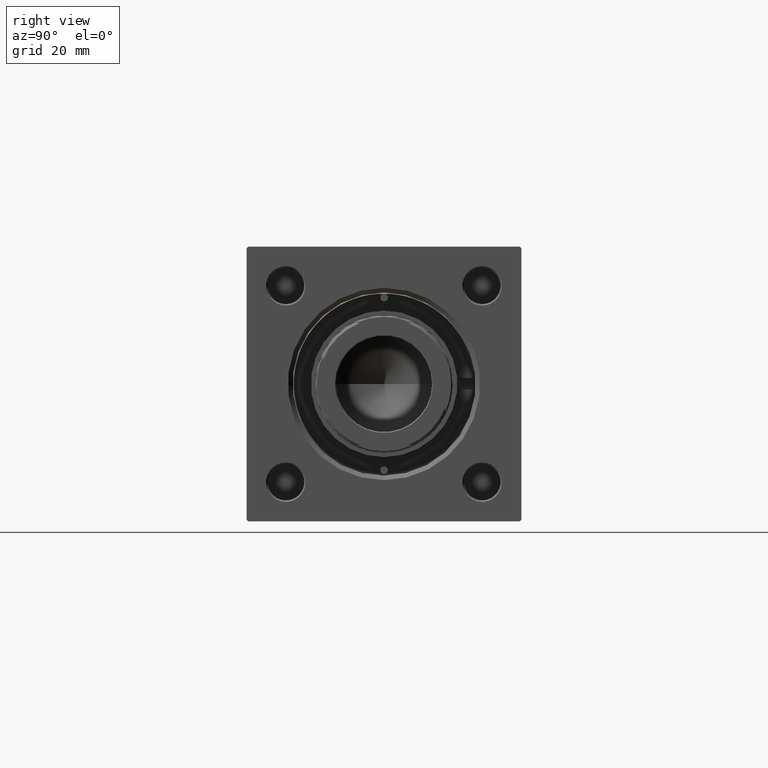
[diagram: clean part render]
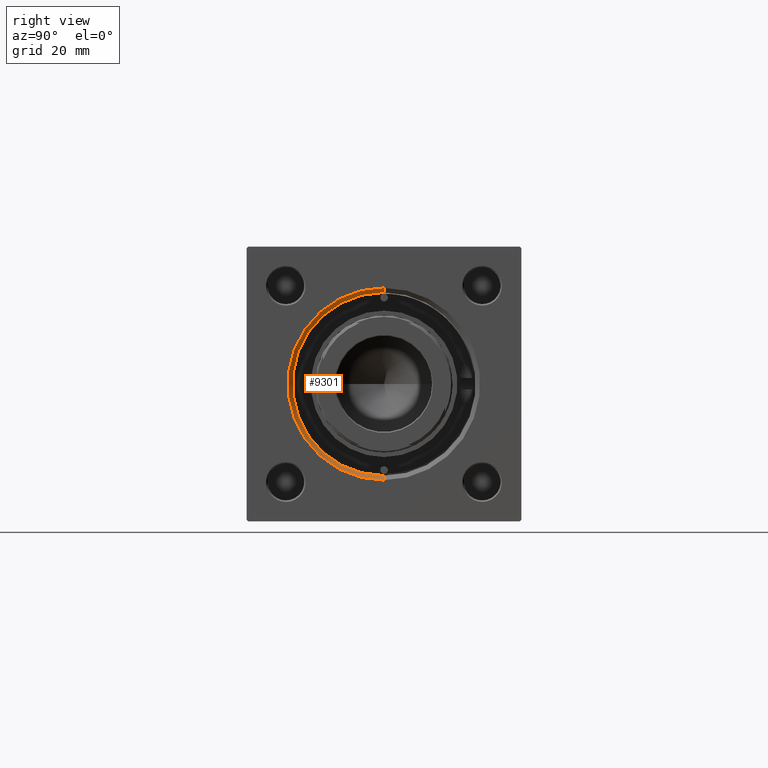
[diagram: same view with one face highlighted and labeled with its STEP entity id]
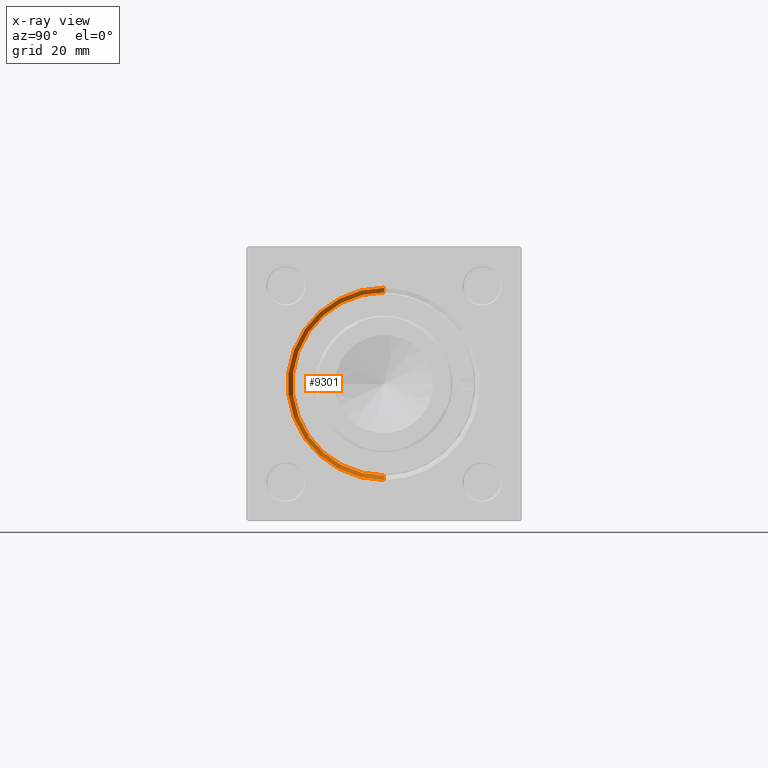
[diagram: x-ray of the same camera — body ghosted, the highlighted face saturated]
A machine part, right view. The second image highlights one B-rep face of the part: STEP entity #9301.
The next image is the same camera in x-ray: the body ghosted, the highlighted face saturated — about 0% of this face is hidden behind the body in this view.
In plain terms, the highlighted conical surface has half-angle 45 deg.
Its self-contained STEP definition (entity closure, byte-faithful):
#681 = DIRECTION ( 'NONE',  ( 0.7071067811865474617, 0.000000000000000000, -0.7071067811865474617 ) ) ;
#1114 = CARTESIAN_POINT ( 'NONE',  ( 153.5000000000000000, 0.000000000000000000, 0.000000000000000000 ) ) ;
#1131 = VERTEX_POINT ( 'NONE', #8577 ) ;
#1850 = DIRECTION ( 'NONE',  ( 0.000000000000000000, 0.000000000000000000, -1.000000000000000000 ) ) ;
#2151 = DIRECTION ( 'NONE',  ( 0.000000000000000000, 0.000000000000000000, 1.000000000000000000 ) ) ;
#2425 = CARTESIAN_POINT ( 'NONE',  ( 153.5000000000000000, 0.000000000000000000, -30.00000000000000000 ) ) ;
#4033 = LINE ( 'NONE', #19802, #43764 ) ;
#4988 = CARTESIAN_POINT ( 'NONE',  ( 153.5000000000000000, 0.000000000000000000, -30.00000000000000000 ) ) ;
#5501 = CARTESIAN_POINT ( 'NONE',  ( 155.0000000000000000, 0.000000000000000000, 0.000000000000000000 ) ) ;
#5967 = CARTESIAN_POINT ( 'NONE',  ( 153.5000000000000000, 0.000000000000000000, 0.000000000000000000 ) ) ;
#8275 = CARTESIAN_POINT ( 'NONE',  ( 155.0000000000000000, 0.000000000000000000, -31.50000000000000000 ) ) ;
#8577 = CARTESIAN_POINT ( 'NONE',  ( 155.0000000000000000, 3.857637417314162689E-15, 31.50000000000000000 ) ) ;
#9301 = ADVANCED_FACE ( 'NONE', ( #36945 ), #15039, .F. ) ;
#10595 = CIRCLE ( 'NONE', #21147, 30.00000000000000000 ) ;
#11410 = DIRECTION ( 'NONE',  ( 0.7071067811865474617, 8.659560562354932858E-17, 0.7071067811865474617 ) ) ;
#11671 = AXIS2_PLACEMENT_3D ( 'NONE', #5501, #21007, #33471 ) ;
#11865 = LINE ( 'NONE', #4988, #27681 ) ;
#12311 = CARTESIAN_POINT ( 'NONE',  ( 153.5000000000000000, 3.673940397442059178E-15, 30.00000000000000000 ) ) ;
#12682 = ORIENTED_EDGE ( 'NONE', *, *, #35594, .F. ) ;
#15039 = CONICAL_SURFACE ( 'NONE', #24795, 30.00000000000000000, 0.7853981633974482790 ) ;
#18632 = EDGE_CURVE ( 'NONE', #47151, #1131, #4033, .T. ) ;
#19802 = CARTESIAN_POINT ( 'NONE',  ( 153.5000000000000000, 3.673940397442059178E-15, 30.00000000000000000 ) ) ;
#20292 = ORIENTED_EDGE ( 'NONE', *, *, #23399, .F. ) ;
#21007 = DIRECTION ( 'NONE',  ( -1.000000000000000000, -0.000000000000000000, -0.000000000000000000 ) ) ;
#21147 = AXIS2_PLACEMENT_3D ( 'NONE', #5967, #21480, #2151 ) ;
#21480 = DIRECTION ( 'NONE',  ( 1.000000000000000000, 0.000000000000000000, 0.000000000000000000 ) ) ;
#23399 = EDGE_CURVE ( 'NONE', #47151, #37544, #10595, .T. ) ;
#23813 = ORIENTED_EDGE ( 'NONE', *, *, #18632, .T. ) ;
#24350 = EDGE_CURVE ( 'NONE', #37544, #49471, #11865, .T. ) ;
#24795 = AXIS2_PLACEMENT_3D ( 'NONE', #1114, #40513, #1850 ) ;
#27681 = VECTOR ( 'NONE', #681, 1000.000000000000114 ) ;
#33471 = DIRECTION ( 'NONE',  ( 0.000000000000000000, 0.000000000000000000, 1.000000000000000000 ) ) ;
#35003 = ORIENTED_EDGE ( 'NONE', *, *, #24350, .F. ) ;
#35594 = EDGE_CURVE ( 'NONE', #49471, #1131, #44184, .T. ) ;
#36945 = FACE_OUTER_BOUND ( 'NONE', #39406, .T. ) ;
#37544 = VERTEX_POINT ( 'NONE', #2425 ) ;
#39406 = EDGE_LOOP ( 'NONE', ( #20292, #23813, #12682, #35003 ) ) ;
#40513 = DIRECTION ( 'NONE',  ( 1.000000000000000000, 0.000000000000000000, 0.000000000000000000 ) ) ;
#43764 = VECTOR ( 'NONE', #11410, 1000.000000000000114 ) ;
#44184 = CIRCLE ( 'NONE', #11671, 31.50000000000000000 ) ;
#47151 = VERTEX_POINT ( 'NONE', #12311 ) ;
#49471 = VERTEX_POINT ( 'NONE', #8275 ) ;